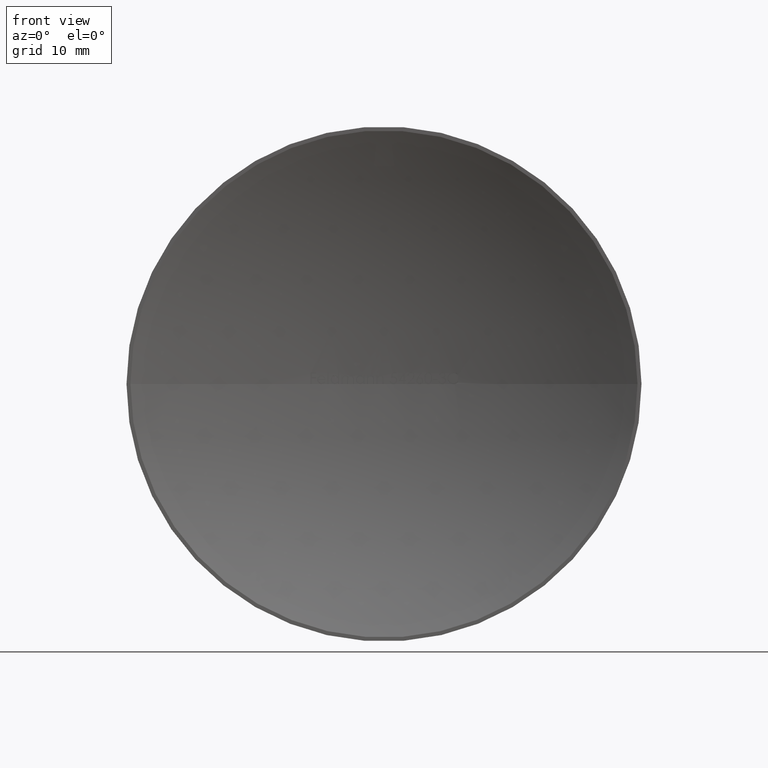
[diagram: clean part render]
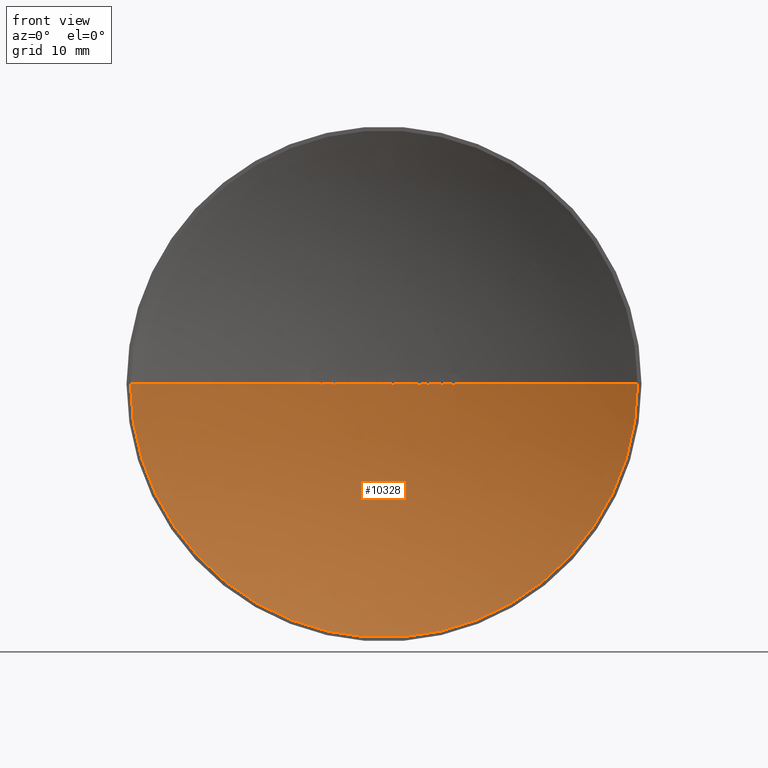
[diagram: same view with one face highlighted and labeled with its STEP entity id]
A machine part, front view. The second image highlights one B-rep face of the part: STEP entity #10328.
In plain terms, the highlighted spherical surface has radius 66.4302 mm.
Its self-contained STEP definition (entity closure, byte-faithful):
#23 = CARTESIAN_POINT ( 'NONE',  ( -8.522636217948688800, 6.451027374792510600, 5.077782315761250600E-015 ) ) ;
#24 = CARTESIAN_POINT ( 'NONE',  ( 5.004972786114223900, 6.811189649376662400, 8.658394159128149800E-006 ) ) ;
#31 = CARTESIAN_POINT ( 'NONE',  ( 4.342966016880645000, 6.857884164009932200, 1.736758565127376200E-006 ) ) ;
#39 = ORIENTED_EDGE ( 'NONE', *, *, #9159, .T. ) ;
#53 = CIRCLE ( 'NONE', #3387, 66.43017857142852700 ) ;
#54 = CARTESIAN_POINT ( 'NONE',  ( 5.327266439433031100, 6.786049295040212000, 1.983274232265610600E-005 ) ) ;
#61 = CIRCLE ( 'NONE', #3767, 29.68202317902207500 ) ;
#88 = B_SPLINE_CURVE_WITH_KNOTS ( 'NONE', 3,
 ( #533, #6390, #4370, #12469, #9437, #12284, #2488, #487 ),
 .UNSPECIFIED., .F., .F.,
 ( 4, 2, 2, 4 ),
 ( 0.6915284599364781600, 0.8457642299682390800, 0.9228821149841195400, 1.000000000000000000 ),
 .UNSPECIFIED. ) ;
#113 = EDGE_CURVE ( 'NONE', #2863, #12756, #8528, .T. ) ;
#170 = CARTESIAN_POINT ( 'NONE',  ( 8.159865523305255100, 6.496938691238555400, -0.03360497176250056000 ) ) ;
#208 = CARTESIAN_POINT ( 'NONE',  ( 6.917659629173074100, 6.638839374358304300, -0.02083154504919444700 ) ) ;
#233 = CARTESIAN_POINT ( 'NONE',  ( 1.851550126366366400E-014, -59.43017857142852700, 0.0000000000000000000 ) ) ;
#249 = ORIENTED_EDGE ( 'NONE', *, *, #3310, .T. ) ;
#294 = AXIS2_PLACEMENT_3D ( 'NONE', #8605, #3777, #1761 ) ;
#297 = CARTESIAN_POINT ( 'NONE',  ( 1.014727432201454800, 6.992244220328792000, -0.03003811572587966300 ) ) ;
#299 = EDGE_CURVE ( 'NONE', #4088, #7540, #5116, .T. ) ;
#306 = VERTEX_POINT ( 'NONE', #10859 ) ;
#313 = VERTEX_POINT ( 'NONE', #7762 ) ;
#351 = CIRCLE ( 'NONE', #1428, 66.43017857142852700 ) ;
#404 = ORIENTED_EDGE ( 'NONE', *, *, #2468, .T. ) ;
#407 = B_SPLINE_CURVE_WITH_KNOTS ( 'NONE', 3,
 ( #31, #1781, #12747, #6719, #2803, #8708, #6799, #7712, #11725, #5848 ),
 .UNSPECIFIED., .F., .F.,
 ( 4, 2, 2, 2, 4 ),
 ( 0.7312491607469426800, 0.8656245803734692300, 0.9328122901867346200, 0.9664061450933673100, 1.000000000000000000 ),
 .UNSPECIFIED. ) ;
#453 = EDGE_CURVE ( 'NONE', #2863, #858, #9598, .T. ) ;
#483 = CARTESIAN_POINT ( 'NONE',  ( -5.896485805512929400, 6.737790022120274000, -3.164025963541740200E-006 ) ) ;
#487 = CARTESIAN_POINT ( 'NONE',  ( -2.794767461271348500, 6.941182814426407600, -0.01696047008546997000 ) ) ;
#501 = VERTEX_POINT ( 'NONE', #8140 ) ;
#533 = CARTESIAN_POINT ( 'NONE',  ( -2.656415807145405600, 6.946866175003003200, 9.668506685378765000E-007 ) ) ;
#540 = CARTESIAN_POINT ( 'NONE',  ( -3.536258012820490600, 6.905810938781116600, 5.415877148130041200E-015 ) ) ;
#594 = AXIS2_PLACEMENT_3D ( 'NONE', #9836, #9880, #10815 ) ;
#609 = AXIS2_PLACEMENT_3D ( 'NONE', #10105, #7965, #2061 ) ;
#628 = CARTESIAN_POINT ( 'NONE',  ( 1.073544754941255800, 6.991316263156742000, -0.03392094017094018900 ) ) ;
#656 = CIRCLE ( 'NONE', #12786, 66.43017857142852700 ) ;
#721 = EDGE_CURVE ( 'NONE', #11035, #10247, #12006, .T. ) ;
#745 = VERTEX_POINT ( 'NONE', #1008 ) ;
#782 = DIRECTION ( 'NONE',  ( 1.000000000000000000, 0.0000000000000000000, 0.0000000000000000000 ) ) ;
#805 = CARTESIAN_POINT ( 'NONE',  ( 1.851550126366366400E-014, -59.43017857142852700, 0.0000000000000000000 ) ) ;
#814 = CIRCLE ( 'NONE', #3224, 66.43017857142852700 ) ;
#842 = DIRECTION ( 'NONE',  ( 0.0000000000000000000, 0.0000000000000000000, -1.000000000000000000 ) ) ;
#843 = DIRECTION ( 'NONE',  ( -9.257750631831822700E-015, -1.000000000000000000, -0.0000000000000000000 ) ) ;
#858 = VERTEX_POINT ( 'NONE', #3408 ) ;
#862 = CIRCLE ( 'NONE', #4937, 66.43017857142852700 ) ;
#864 = CARTESIAN_POINT ( 'NONE',  ( 5.165788177751086800, 6.798834005419603700, -0.03392094017094023100 ) ) ;
#869 = CARTESIAN_POINT ( 'NONE',  ( -7.340968466212589600, 6.593139425718569600, -0.01696047008547008800 ) ) ;
#891 = CARTESIAN_POINT ( 'NONE',  ( -5.762849726228614200, 6.749560778369768400, -0.01696047008546929700 ) ) ;
#903 = AXIS2_PLACEMENT_3D ( 'NONE', #3594, #1498, #6464 ) ;
#908 = CARTESIAN_POINT ( 'NONE',  ( 5.276747908055542200, 6.790113832693068100, -0.02262029412128738900 ) ) ;
#931 = DIRECTION ( 'NONE',  ( 1.000000000000000000, -9.257750631831822700E-015, 0.0000000000000000000 ) ) ;
#935 = CARTESIAN_POINT ( 'NONE',  ( -5.647231844788295000, 6.759532988880932800, -0.005855859227228045100 ) ) ;
#965 = CIRCLE ( 'NONE', #7787, 66.43017857142852700 ) ;
#974 = CIRCLE ( 'NONE', #594, 66.43017857142852700 ) ;
#1000 = DIRECTION ( 'NONE',  ( 1.000000000000000000, 0.0000000000000000000, 0.0000000000000000000 ) ) ;
#1008 = CARTESIAN_POINT ( 'NONE',  ( 4.342966016880645000, 6.857884164009932200, 1.736758565127376200E-006 ) ) ;
#1021 = AXIS2_PLACEMENT_3D ( 'NONE', #12545, #10576, #6470 ) ;
#1075 = CARTESIAN_POINT ( 'NONE',  ( 6.860715946046376200, 6.644767912974522500, -0.02985472088839011300 ) ) ;
#1076 = CARTESIAN_POINT ( 'NONE',  ( 8.290370445413586300, 6.480666814148150900, -0.02041759173794994700 ) ) ;
#1169 = DIRECTION ( 'NONE',  ( -1.000000000000000000, 0.0000000000000000000, 1.224646799147353200E-016 ) ) ;
#1184 = EDGE_CURVE ( 'NONE', #7489, #4104, #974, .T. ) ;
#1215 = CARTESIAN_POINT ( 'NONE',  ( 6.724516828887944400, 6.658773214277601000, -0.02988981742920416100 ) ) ;
#1277 = B_SPLINE_CURVE_WITH_KNOTS ( 'NONE', 3,
 ( #6989, #4974, #1076, #3083, #9972, #4051, #170, #5015 ),
 .UNSPECIFIED., .F., .F.,
 ( 4, 2, 2, 4 ),
 ( 0.6451300335759891900, 0.8225650167879980900, 0.9112825083939990500, 1.000000000000000000 ),
 .UNSPECIFIED. ) ;
#1278 = EDGE_CURVE ( 'NONE', #8877, #8895, #3114, .T. ) ;
#1283 = CARTESIAN_POINT ( 'NONE',  ( 0.9062174173752549600, 6.993818484255828400, 9.643277976112545500E-006 ) ) ;
#1306 = DIRECTION ( 'NONE',  ( 1.000000000000000000, 0.0000000000000000000, 0.0000000000000000000 ) ) ;
#1313 = CARTESIAN_POINT ( 'NONE',  ( 1.851550126366366400E-014, -59.43017857142852700, 0.0000000000000000000 ) ) ;
#1314 = CARTESIAN_POINT ( 'NONE',  ( -5.367988782051262400, 6.782760658510911300, 3.286945139899370700E-016 ) ) ;
#1319 = ORIENTED_EDGE ( 'NONE', *, *, #3792, .T. ) ;
#1331 = EDGE_CURVE ( 'NONE', #7455, #8592, #10349, .T. ) ;
#1357 = DIRECTION ( 'NONE',  ( -1.224646799147353200E-016, 1.133747467857722800E-030, -1.000000000000000000 ) ) ;
#1359 = ORIENTED_EDGE ( 'NONE', *, *, #7171, .F. ) ;
#1428 = AXIS2_PLACEMENT_3D ( 'NONE', #805, #3668, #12664 ) ;
#1498 = DIRECTION ( 'NONE',  ( 0.0000000000000000000, -0.0000000000000000000, 1.000000000000000000 ) ) ;
#1562 = CARTESIAN_POINT ( 'NONE',  ( 4.009491489483225200, 6.878890164770546700, 1.012043942697234100E-006 ) ) ;
#1582 = CIRCLE ( 'NONE', #6769, 66.43017857142852700 ) ;
#1638 = CARTESIAN_POINT ( 'NONE',  ( 1.851550126366366400E-014, -59.43017857142852700, 0.0000000000000000000 ) ) ;
#1673 = AXIS2_PLACEMENT_3D ( 'NONE', #10648, #11554, #4669 ) ;
#1703 = VERTEX_POINT ( 'NONE', #23 ) ;
#1731 = AXIS2_PLACEMENT_3D ( 'NONE', #233, #9050, #1306 ) ;
#1734 = CARTESIAN_POINT ( 'NONE',  ( -4.197716346153825400, 6.867240703450595300, 5.412728153780717100E-015 ) ) ;
#1761 = DIRECTION ( 'NONE',  ( 1.000000000000000000, 0.0000000000000000000, 0.0000000000000000000 ) ) ;
#1781 = CARTESIAN_POINT ( 'NONE',  ( 4.316351520074240600, 6.859627930012282000, -0.01128910878301984600 ) ) ;
#1801 = ORIENTED_EDGE ( 'NONE', *, *, #7716, .T. ) ;
#1822 = EDGE_CURVE ( 'NONE', #7048, #10422, #2837, .T. ) ;
#1828 = CARTESIAN_POINT ( 'NONE',  ( 7.890717786329146200, 6.529696670580331200, 8.722626568949768700E-006 ) ) ;
#1899 = CARTESIAN_POINT ( 'NONE',  ( -7.198437231001801000, 6.608833454196194200, 1.557357203263013400E-007 ) ) ;
#1909 = VERTEX_POINT ( 'NONE', #8650 ) ;
#1927 = CARTESIAN_POINT ( 'NONE',  ( 1.851550126366366400E-014, -59.43017857142852700, 0.0000000000000000000 ) ) ;
#1931 = CARTESIAN_POINT ( 'NONE',  ( -2.928401803393922500, 6.935423029465665600, -4.716759717897009400E-006 ) ) ;
#1941 = ORIENTED_EDGE ( 'NONE', *, *, #3151, .T. ) ;
#1957 = VERTEX_POINT ( 'NONE', #6917 ) ;
#1990 = CARTESIAN_POINT ( 'NONE',  ( -5.713042373222310600, 6.753880431565932000, -0.01493598827987714000 ) ) ;
#1998 = EDGE_CURVE ( 'NONE', #4532, #1909, #1277, .T. ) ;
#2020 = CARTESIAN_POINT ( 'NONE',  ( -7.280925053312247800, 6.599789576879617300, -0.01445548997176768600 ) ) ;
#2061 = DIRECTION ( 'NONE',  ( 1.000000000000000000, 0.0000000000000000000, 0.0000000000000000000 ) ) ;
#2089 = DIRECTION ( 'NONE',  ( -1.000000000000000000, 0.0000000000000000000, 1.224646799147353200E-016 ) ) ;
#2102 = DIRECTION ( 'NONE',  ( -1.224646799147353200E-016, 1.133747467857722800E-030, -1.000000000000000000 ) ) ;
#2112 = VERTEX_POINT ( 'NONE', #6552 ) ;
#2125 = ORIENTED_EDGE ( 'NONE', *, *, #10486, .T. ) ;
#2133 = VERTEX_POINT ( 'NONE', #7462 ) ;
#2141 = CARTESIAN_POINT ( 'NONE',  ( 6.638189096576419400, 6.667505986008105600, -0.01190084169506753900 ) ) ;
#2198 = DIRECTION ( 'NONE',  ( 0.0000000000000000000, 0.0000000000000000000, 1.000000000000000000 ) ) ;
#2286 = ORIENTED_EDGE ( 'NONE', *, *, #5641, .F. ) ;
#2357 = AXIS2_PLACEMENT_3D ( 'NONE', #3444, #842, #5809 ) ;
#2407 = EDGE_CURVE ( 'NONE', #10247, #12107, #3231, .T. ) ;
#2465 = CARTESIAN_POINT ( 'NONE',  ( -0.1611244658119550800, 6.999804598360082500, 0.0000000000000000000 ) ) ;
#2468 = EDGE_CURVE ( 'NONE', #1957, #858, #7747, .T. ) ;
#2488 = CARTESIAN_POINT ( 'NONE',  ( -2.779498765197791200, 6.941825839627401100, -0.01660652747433853300 ) ) ;
#2510 = EDGE_CURVE ( 'NONE', #313, #7577, #10827, .T. ) ;
#2543 = AXIS2_PLACEMENT_3D ( 'NONE', #10624, #4731, #1000 ) ;
#2555 = VERTEX_POINT ( 'NONE', #7172 ) ;
#2572 = EDGE_LOOP ( 'NONE', ( #2286, #8483, #9766, #10386, #4743, #8406, #10060, #9764, #7059, #39, #1941, #10292, #5432, #6237, #8572, #4384, #8016, #11660, #8385, #2125, #2783, #5220, #5844, #6686, #12515, #11804, #9788, #3531, #7169, #11516, #12452, #1319, #12172, #6913, #1359, #5329, #1801, #6856, #249, #4111, #5160, #3667, #11360, #3618, #9651, #9034, #10085, #5053, #5182, #404, #2691, #5298, #6097 ) ) ;
#2659 = DIRECTION ( 'NONE',  ( 1.000000000000000000, 0.0000000000000000000, 0.0000000000000000000 ) ) ;
#2667 = CARTESIAN_POINT ( 'NONE',  ( -5.624533119961610900, 6.761461696624700800, -3.257222052881221600E-006 ) ) ;
#2671 = CARTESIAN_POINT ( 'NONE',  ( 3.587139423076938000, 6.903078967993493200, 5.415654101511347500E-015 ) ) ;
#2691 = ORIENTED_EDGE ( 'NONE', *, *, #453, .F. ) ;
#2708 = DIRECTION ( 'NONE',  ( 0.0000000000000000000, 0.0000000000000000000, 1.000000000000000000 ) ) ;
#2783 = ORIENTED_EDGE ( 'NONE', *, *, #3487, .T. ) ;
#2803 = CARTESIAN_POINT ( 'NONE',  ( 4.233092866632425500, 6.864986177424479600, -0.03023910183869557900 ) ) ;
#2820 = CARTESIAN_POINT ( 'NONE',  ( -4.859174679487156600, 6.822044383473987700, 5.409038185207876200E-015 ) ) ;
#2837 = B_SPLINE_CURVE_WITH_KNOTS ( 'NONE', 3,
 ( #6384, #10405, #5450, #483 ),
 .UNSPECIFIED., .F., .F.,
 ( 4, 4 ),
 ( 0.0000000000000000000, 0.1696774651416101700 ),
 .UNSPECIFIED. ) ;
#2858 = DIRECTION ( 'NONE',  ( 0.0000000000000000000, -0.0000000000000000000, 1.000000000000000000 ) ) ;
#2863 = VERTEX_POINT ( 'NONE', #3850 ) ;
#2868 = CARTESIAN_POINT ( 'NONE',  ( 6.792933276575865900, 6.651767010566011600, -0.03392094017093956500 ) ) ;
#2870 = CARTESIAN_POINT ( 'NONE',  ( -2.794767461271348500, 6.941182814426407600, -0.01696047008546997000 ) ) ;
#2905 = EDGE_CURVE ( 'NONE', #12274, #313, #4178, .T. ) ;
#2941 = CARTESIAN_POINT ( 'NONE',  ( 1.851550126366366400E-014, -59.43017857142852700, 0.0000000000000000000 ) ) ;
#2980 = EDGE_CURVE ( 'NONE', #10574, #9583, #53, .T. ) ;
#2993 = CARTESIAN_POINT ( 'NONE',  ( 6.949378024668041200, 6.635513459027018600, -0.01181292390482659200 ) ) ;
#3038 = CARTESIAN_POINT ( 'NONE',  ( 6.812392688487706000, 6.649766974922758100, -0.03332425331627562900 ) ) ;
#3083 = CARTESIAN_POINT ( 'NONE',  ( 8.231919395020536700, 6.487980477415068700, -0.02879356809867841100 ) ) ;
#3104 = CIRCLE ( 'NONE', #10735, 66.43017857142852700 ) ;
#3107 = AXIS2_PLACEMENT_3D ( 'NONE', #6802, #10768, #6759 ) ;
#3114 = CIRCLE ( 'NONE', #5019, 66.43017857142852700 ) ;
#3128 = CIRCLE ( 'NONE', #5081, 66.43017857142852700 ) ;
#3151 = EDGE_CURVE ( 'NONE', #8787, #6902, #5256, .T. ) ;
#3167 = CARTESIAN_POINT ( 'NONE',  ( 1.851550126366366400E-014, -59.43017857142852700, 0.0000000000000000000 ) ) ;
#3180 = CARTESIAN_POINT ( 'NONE',  ( -3.654981303418780600, 6.899375450165345000, 2.238030577088003900E-016 ) ) ;
#3189 = EDGE_CURVE ( 'NONE', #9183, #8705, #9745, .T. ) ;
#3224 = AXIS2_PLACEMENT_3D ( 'NONE', #5196, #10230, #7175 ) ;
#3231 = B_SPLINE_CURVE_WITH_KNOTS ( 'NONE', 3,
 ( #869, #3822, #12730, #6832 ),
 .UNSPECIFIED., .F., .F.,
 ( 4, 4 ),
 ( 0.0000000000000000000, 0.1807836670652108500 ),
 .UNSPECIFIED. ) ;
#3245 = DIRECTION ( 'NONE',  ( 0.0000000000000000000, 0.0000000000000000000, 1.000000000000000000 ) ) ;
#3270 = AXIS2_PLACEMENT_3D ( 'NONE', #4418, #11216, #3430 ) ;
#3271 = DIRECTION ( 'NONE',  ( 0.0000000000000000000, -0.0000000000000000000, 1.000000000000000000 ) ) ;
#3281 = VERTEX_POINT ( 'NONE', #8729 ) ;
#3305 = CARTESIAN_POINT ( 'NONE',  ( -29.68202317902150300, 5.558964229992239200E-013, 0.0000000000000000000 ) ) ;
#3310 = EDGE_CURVE ( 'NONE', #7489, #4412, #10659, .T. ) ;
#3387 = AXIS2_PLACEMENT_3D ( 'NONE', #1638, #6426, #9978 ) ;
#3391 = CIRCLE ( 'NONE', #4221, 66.43017857142852700 ) ;
#3396 = DIRECTION ( 'NONE',  ( -1.000000000000000000, 0.0000000000000000000, 1.224646799147353200E-016 ) ) ;
#3402 = DIRECTION ( 'NONE',  ( 1.000000000000000000, 0.0000000000000000000, 0.0000000000000000000 ) ) ;
#3408 = CARTESIAN_POINT ( 'NONE',  ( 2.298143696581220300, 6.960236102541883500, 0.0000000000000000000 ) ) ;
#3430 = DIRECTION ( 'NONE',  ( 1.000000000000000000, 0.0000000000000000000, 0.0000000000000000000 ) ) ;
#3444 = CARTESIAN_POINT ( 'NONE',  ( 1.851550126366366400E-014, -59.43017857142852700, 0.0000000000000000000 ) ) ;
#3453 = CARTESIAN_POINT ( 'NONE',  ( 1.200286661234907200, 6.989159872130147600, -0.02052153996602586900 ) ) ;
#3464 = EDGE_CURVE ( 'NONE', #6902, #5131, #351, .T. ) ;
#3487 = EDGE_CURVE ( 'NONE', #7354, #4088, #11430, .T. ) ;
#3531 = ORIENTED_EDGE ( 'NONE', *, *, #9876, .T. ) ;
#3560 = EDGE_CURVE ( 'NONE', #1957, #9583, #1582, .T. ) ;
#3563 = EDGE_CURVE ( 'NONE', #5532, #7048, #6290, .T. ) ;
#3594 = CARTESIAN_POINT ( 'NONE',  ( 1.851550126366366400E-014, -59.43017857142852700, 0.0000000000000000000 ) ) ;
#3618 = ORIENTED_EDGE ( 'NONE', *, *, #10183, .F. ) ;
#3626 = AXIS2_PLACEMENT_3D ( 'NONE', #1927, #11834, #9892 ) ;
#3667 = ORIENTED_EDGE ( 'NONE', *, *, #5539, .T. ) ;
#3668 = DIRECTION ( 'NONE',  ( 0.0000000000000000000, -0.0000000000000000000, 1.000000000000000000 ) ) ;
#3764 = VERTEX_POINT ( 'NONE', #1562 ) ;
#3767 = AXIS2_PLACEMENT_3D ( 'NONE', #7801, #843, #931 ) ;
#3777 = DIRECTION ( 'NONE',  ( 0.0000000000000000000, 0.0000000000000000000, 1.000000000000000000 ) ) ;
#3792 = EDGE_CURVE ( 'NONE', #1703, #8634, #3104, .T. ) ;
#3801 = DIRECTION ( 'NONE',  ( -1.000000000000000000, 0.0000000000000000000, 1.224646799147353200E-016 ) ) ;
#3808 = CARTESIAN_POINT ( 'NONE',  ( 4.009491489483225200, 6.878890164770546700, 1.012043942697234100E-006 ) ) ;
#3822 = CARTESIAN_POINT ( 'NONE',  ( -7.393038173780295700, 6.587350236730618000, -0.01574494939064656500 ) ) ;
#3850 = CARTESIAN_POINT ( 'NONE',  ( 1.261121777289197400, 6.988028193234717000, -9.167402485458805900E-007 ) ) ;
#3916 = EDGE_CURVE ( 'NONE', #12756, #6008, #9943, .T. ) ;
#3919 = CARTESIAN_POINT ( 'NONE',  ( -5.747602909655213000, 6.750888542848904300, -0.01660703466155204900 ) ) ;
#4051 = CARTESIAN_POINT ( 'NONE',  ( 8.173036359591229400, 6.495304980684376300, -0.03335402029129003200 ) ) ;
#4074 = DIRECTION ( 'NONE',  ( 1.000000000000000000, 0.0000000000000000000, 0.0000000000000000000 ) ) ;
#4088 = VERTEX_POINT ( 'NONE', #5804 ) ;
#4091 = VERTEX_POINT ( 'NONE', #9866 ) ;
#4104 = VERTEX_POINT ( 'NONE', #10720 ) ;
#4111 = ORIENTED_EDGE ( 'NONE', *, *, #4155, .T. ) ;
#4153 = CARTESIAN_POINT ( 'NONE',  ( 2.688234508547026700, 6.945585230270498100, 1.455741836240979700E-015 ) ) ;
#4155 = EDGE_CURVE ( 'NONE', #4412, #12620, #7653, .T. ) ;
#4157 = CARTESIAN_POINT ( 'NONE',  ( 6.609460690423429900, 6.670378558222040500, -1.129570290554181700E-005 ) ) ;
#4178 = CIRCLE ( 'NONE', #10236, 66.43017857142852700 ) ;
#4190 = CARTESIAN_POINT ( 'NONE',  ( 1.851550126366366400E-014, -59.43017857142852700, 0.0000000000000000000 ) ) ;
#4191 = EDGE_CURVE ( 'NONE', #9401, #4091, #8030, .T. ) ;
#4199 = VERTEX_POINT ( 'NONE', #24 ) ;
#4221 = AXIS2_PLACEMENT_3D ( 'NONE', #7752, #8748, #4074 ) ;
#4229 = EDGE_CURVE ( 'NONE', #12107, #1703, #814, .T. ) ;
#4273 = AXIS2_PLACEMENT_3D ( 'NONE', #7650, #2708, #8685 ) ;
#4309 = B_SPLINE_CURVE_WITH_KNOTS ( 'NONE', 3,
 ( #4674, #12538, #7684, #8678, #6600, #3808 ),
 .UNSPECIFIED., .F., .F.,
 ( 4, 2, 4 ),
 ( 0.0000000000000000000, 0.1336037352279619000, 0.2672074704559238000 ),
 .UNSPECIFIED. ) ;
#4313 = DIRECTION ( 'NONE',  ( -1.000000000000000000, 0.0000000000000000000, 1.224646799147353200E-016 ) ) ;
#4316 = AXIS2_PLACEMENT_3D ( 'NONE', #4190, #6998, #10950 ) ;
#4370 = CARTESIAN_POINT ( 'NONE',  ( -2.701705802547022200, 6.945041638655964400, -0.01008971788314707600 ) ) ;
#4384 = ORIENTED_EDGE ( 'NONE', *, *, #5161, .T. ) ;
#4412 = VERTEX_POINT ( 'NONE', #2868 ) ;
#4418 = CARTESIAN_POINT ( 'NONE',  ( 1.851550126366366400E-014, -59.43017857142852700, 0.0000000000000000000 ) ) ;
#4495 = CARTESIAN_POINT ( 'NONE',  ( 1.261121777289197400, 6.988028193234717000, -9.167402485458805900E-007 ) ) ;
#4521 = CARTESIAN_POINT ( 'NONE',  ( 1.851550126366366400E-014, -59.43017857142852700, 0.0000000000000000000 ) ) ;
#4529 = CARTESIAN_POINT ( 'NONE',  ( 1.851550126366366400E-014, -59.43017857142852700, 0.0000000000000000000 ) ) ;
#4532 = VERTEX_POINT ( 'NONE', #6073 ) ;
#4603 = CARTESIAN_POINT ( 'NONE',  ( -6.504340277777756400, 6.680805255638802900, 4.446406211702347100E-015 ) ) ;
#4608 = DIRECTION ( 'NONE',  ( 1.000000000000000000, 0.0000000000000000000, 0.0000000000000000000 ) ) ;
#4669 = DIRECTION ( 'NONE',  ( 1.000000000000000000, 0.0000000000000000000, 0.0000000000000000000 ) ) ;
#4674 = CARTESIAN_POINT ( 'NONE',  ( 4.174395699786343200, 6.868704488117075800, -0.03392094017094001600 ) ) ;
#4731 = DIRECTION ( 'NONE',  ( 0.0000000000000000000, 0.0000000000000000000, 1.000000000000000000 ) ) ;
#4743 = ORIENTED_EDGE ( 'NONE', *, *, #11429, .T. ) ;
#4748 = CARTESIAN_POINT ( 'NONE',  ( -5.762849726228614200, 6.749560778369768400, -0.01696047008546929700 ) ) ;
#4775 = CARTESIAN_POINT ( 'NONE',  ( -4.316439636752110500, 6.859616826461759400, 0.0000000000000000000 ) ) ;
#4812 = CARTESIAN_POINT ( 'NONE',  ( -7.480759993015309000, 6.577448420023644700, -2.146346530891694600E-006 ) ) ;
#4864 = CARTESIAN_POINT ( 'NONE',  ( -7.221278458772248500, 6.606343826215503000, -0.005956507221806031600 ) ) ;
#4878 = CARTESIAN_POINT ( 'NONE',  ( 8.133605435363259400, 6.500178147032576300, -0.03392094017094016100 ) ) ;
#4901 = CARTESIAN_POINT ( 'NONE',  ( -2.887934006024022600, 6.937208773146024600, -0.01015619754561262700 ) ) ;
#4937 = AXIS2_PLACEMENT_3D ( 'NONE', #3167, #12133, #4313 ) ;
#4957 = CARTESIAN_POINT ( 'NONE',  ( -5.704695880799300200, 6.754600675183249700, -0.01425468610349842100 ) ) ;
#4974 = CARTESIAN_POINT ( 'NONE',  ( 8.329080331833285600, 6.475788240046374400, -0.01172972223754921600 ) ) ;
#5010 = VERTEX_POINT ( 'NONE', #1734 ) ;
#5015 = CARTESIAN_POINT ( 'NONE',  ( 8.133605435363259400, 6.500178147032576300, -0.03392094017094016100 ) ) ;
#5019 = AXIS2_PLACEMENT_3D ( 'NONE', #7142, #3271, #11094 ) ;
#5053 = ORIENTED_EDGE ( 'NONE', *, *, #2980, .T. ) ;
#5081 = AXIS2_PLACEMENT_3D ( 'NONE', #10826, #2858, #9754 ) ;
#5091 = DIRECTION ( 'NONE',  ( 1.000000000000000000, 0.0000000000000000000, 0.0000000000000000000 ) ) ;
#5116 = CIRCLE ( 'NONE', #11952, 66.43017857142852700 ) ;
#5131 = VERTEX_POINT ( 'NONE', #12656 ) ;
#5160 = ORIENTED_EDGE ( 'NONE', *, *, #12275, .F. ) ;
#5161 = EDGE_CURVE ( 'NONE', #12795, #7330, #3391, .T. ) ;
#5182 = ORIENTED_EDGE ( 'NONE', *, *, #3560, .F. ) ;
#5196 = CARTESIAN_POINT ( 'NONE',  ( 1.851550126366366400E-014, -59.43017857142852700, 0.0000000000000000000 ) ) ;
#5220 = ORIENTED_EDGE ( 'NONE', *, *, #299, .T. ) ;
#5230 = CARTESIAN_POINT ( 'NONE',  ( 1.851550126366366400E-014, -59.43017857142852700, 0.0000000000000000000 ) ) ;
#5256 = CIRCLE ( 'NONE', #1021, 66.43017857142852700 ) ;
#5258 = AXIS2_PLACEMENT_3D ( 'NONE', #7273, #1357, #3396 ) ;
#5297 = DIRECTION ( 'NONE',  ( -1.000000000000000000, 0.0000000000000000000, 1.224646799147353200E-016 ) ) ;
#5298 = ORIENTED_EDGE ( 'NONE', *, *, #113, .T. ) ;
#5329 = ORIENTED_EDGE ( 'NONE', *, *, #1998, .T. ) ;
#5389 = CARTESIAN_POINT ( 'NONE',  ( -1.891092414529897300, 6.973077331513370500, 5.421368986300025600E-015 ) ) ;
#5432 = ORIENTED_EDGE ( 'NONE', *, *, #6156, .T. ) ;
#5450 = CARTESIAN_POINT ( 'NONE',  ( -5.856396288490440600, 6.741362648444865400, -0.01006089725309572900 ) ) ;
#5466 = EDGE_CURVE ( 'NONE', #8705, #8877, #6632, .T. ) ;
#5484 = CARTESIAN_POINT ( 'NONE',  ( 1.073544754941255800, 6.991316263156742000, -0.03392094017094018900 ) ) ;
#5515 = CARTESIAN_POINT ( 'NONE',  ( -2.399906517093996200, 6.956635433621388000, 1.469518917206404600E-016 ) ) ;
#5532 = VERTEX_POINT ( 'NONE', #2667 ) ;
#5539 = EDGE_CURVE ( 'NONE', #2112, #12100, #6697, .T. ) ;
#5581 = DIRECTION ( 'NONE',  ( 0.0000000000000000000, -0.0000000000000000000, 1.000000000000000000 ) ) ;
#5596 = DIRECTION ( 'NONE',  ( 0.0000000000000000000, 0.0000000000000000000, 1.000000000000000000 ) ) ;
#5641 = EDGE_CURVE ( 'NONE', #9183, #6008, #965, .T. ) ;
#5693 = EDGE_CURVE ( 'NONE', #7540, #5532, #656, .T. ) ;
#5736 = CIRCLE ( 'NONE', #7654, 66.43017857142852700 ) ;
#5766 = CIRCLE ( 'NONE', #10874, 66.43017857142852700 ) ;
#5779 = EDGE_CURVE ( 'NONE', #745, #7228, #407, .T. ) ;
#5781 = CIRCLE ( 'NONE', #8734, 66.43017857142852700 ) ;
#5804 = CARTESIAN_POINT ( 'NONE',  ( -5.249265491452973700, 6.792278622729727800, 5.406608015633234500E-015 ) ) ;
#5809 = DIRECTION ( 'NONE',  ( -1.000000000000000000, 9.296400683067788600E-015, 0.0000000000000000000 ) ) ;
#5811 = CARTESIAN_POINT ( 'NONE',  ( 7.929328570232313700, 6.525078124194423300, -0.01174480710170744900 ) ) ;
#5844 = ORIENTED_EDGE ( 'NONE', *, *, #5693, .T. ) ;
#5848 = CARTESIAN_POINT ( 'NONE',  ( 4.174395699786343200, 6.868704488117075800, -0.03392094017094001600 ) ) ;
#5883 = CARTESIAN_POINT ( 'NONE',  ( -7.244969988023691500, 6.603748436405247400, -0.01037978764705182000 ) ) ;
#5886 = CARTESIAN_POINT ( 'NONE',  ( 4.174395699786343200, 6.868704488117075800, -0.03392094017094001600 ) ) ;
#5924 = DIRECTION ( 'NONE',  ( 0.0000000000000000000, -0.0000000000000000000, 1.000000000000000000 ) ) ;
#5967 = CARTESIAN_POINT ( 'NONE',  ( -7.325185528078318200, 6.594894375275212700, -0.01663373980258998900 ) ) ;
#6008 = VERTEX_POINT ( 'NONE', #12108 ) ;
#6073 = CARTESIAN_POINT ( 'NONE',  ( 8.366405179285944600, 6.471049637275773300, -4.314708808277502500E-006 ) ) ;
#6081 = VERTEX_POINT ( 'NONE', #3305 ) ;
#6086 = CARTESIAN_POINT ( 'NONE',  ( 1.851550126366366400E-014, -59.43017857142852700, 0.0000000000000000000 ) ) ;
#6097 = ORIENTED_EDGE ( 'NONE', *, *, #3916, .T. ) ;
#6156 = EDGE_CURVE ( 'NONE', #5131, #2133, #88, .T. ) ;
#6162 = CARTESIAN_POINT ( 'NONE',  ( 1.057705301812287700, 6.991572430759043200, -0.03360628954061942200 ) ) ;
#6201 = CARTESIAN_POINT ( 'NONE',  ( 1.042775511435023000, 6.991808533392374500, -0.03273922385146402200 ) ) ;
#6203 = DIRECTION ( 'NONE',  ( 1.000000000000000000, 0.0000000000000000000, 0.0000000000000000000 ) ) ;
#6237 = ORIENTED_EDGE ( 'NONE', *, *, #12157, .T. ) ;
#6286 = CARTESIAN_POINT ( 'NONE',  ( 1.073544754941255800, 6.991316263156742000, -0.03392094017094018900 ) ) ;
#6290 = B_SPLINE_CURVE_WITH_KNOTS ( 'NONE', 3,
 ( #9706, #935, #8758, #4957, #1990, #10688, #3919, #891 ),
 .UNSPECIFIED., .F., .F.,
 ( 4, 2, 2, 4 ),
 ( 0.6914062857405260900, 0.8457031428702602700, 0.9228515714351300800, 1.000000000000000000 ),
 .UNSPECIFIED. ) ;
#6372 = CARTESIAN_POINT ( 'NONE',  ( 1.107054925742622300, 6.990774806462602500, -0.03361714293131357800 ) ) ;
#6384 = CARTESIAN_POINT ( 'NONE',  ( -5.762849726228614200, 6.749560778369768400, -0.01696047008546929700 ) ) ;
#6390 = CARTESIAN_POINT ( 'NONE',  ( -2.678782724040822000, 6.945971130407137700, -0.005772618563248762100 ) ) ;
#6426 = DIRECTION ( 'NONE',  ( 0.0000000000000000000, 0.0000000000000000000, 1.000000000000000000 ) ) ;
#6464 = DIRECTION ( 'NONE',  ( 1.000000000000000000, 0.0000000000000000000, 0.0000000000000000000 ) ) ;
#6470 = DIRECTION ( 'NONE',  ( 1.000000000000000000, 0.0000000000000000000, 0.0000000000000000000 ) ) ;
#6494 = DIRECTION ( 'NONE',  ( 0.0000000000000000000, -0.0000000000000000000, 1.000000000000000000 ) ) ;
#6517 = CARTESIAN_POINT ( 'NONE',  ( 1.851550126366366400E-014, -59.43017857142852700, 0.0000000000000000000 ) ) ;
#6552 = CARTESIAN_POINT ( 'NONE',  ( 5.327266439433031100, 6.786049295040212000, 1.983274232265610600E-005 ) ) ;
#6600 = CARTESIAN_POINT ( 'NONE',  ( 4.035495291860427400, 6.877317848465955000, -0.01142663813006736100 ) ) ;
#6613 = EDGE_CURVE ( 'NONE', #7228, #3764, #4309, .T. ) ;
#6632 = CIRCLE ( 'NONE', #294, 66.43017857142852700 ) ;
#6686 = ORIENTED_EDGE ( 'NONE', *, *, #3563, .T. ) ;
#6697 = B_SPLINE_CURVE_WITH_KNOTS ( 'NONE', 3,
 ( #54, #908, #11791, #864 ),
 .UNSPECIFIED., .F., .F.,
 ( 4, 4 ),
 ( 0.8208415813932712400, 1.000000000000000000 ),
 .UNSPECIFIED. ) ;
#6719 = CARTESIAN_POINT ( 'NONE',  ( 4.246404674252912200, 6.864135405057286500, -0.02840355781576526700 ) ) ;
#6759 = DIRECTION ( 'NONE',  ( 1.000000000000000000, 0.0000000000000000000, 0.0000000000000000000 ) ) ;
#6769 = AXIS2_PLACEMENT_3D ( 'NONE', #7846, #10814, #3801 ) ;
#6799 = CARTESIAN_POINT ( 'NONE',  ( 4.205729355642419300, 6.866725295839611200, -0.03246083080773501400 ) ) ;
#6802 = CARTESIAN_POINT ( 'NONE',  ( 1.851550126366366400E-014, -59.43017857142852700, 0.0000000000000000000 ) ) ;
#6832 = CARTESIAN_POINT ( 'NONE',  ( -7.480759993015309000, 6.577448420023644700, -2.146346530891694600E-006 ) ) ;
#6856 = ORIENTED_EDGE ( 'NONE', *, *, #1184, .F. ) ;
#6870 = EDGE_CURVE ( 'NONE', #12100, #4199, #12322, .T. ) ;
#6902 = VERTEX_POINT ( 'NONE', #5515 ) ;
#6913 = ORIENTED_EDGE ( 'NONE', *, *, #9160, .T. ) ;
#6917 = CARTESIAN_POINT ( 'NONE',  ( 2.416866987179507700, 6.956020137325404900, 5.869270040952140100E-015 ) ) ;
#6929 = CARTESIAN_POINT ( 'NONE',  ( -7.312362513193207300, 6.596314706356700700, -0.01623652899831633600 ) ) ;
#6965 = CIRCLE ( 'NONE', #11255, 66.43017857142852700 ) ;
#6967 = CARTESIAN_POINT ( 'NONE',  ( 6.757340958984846300, 6.655426171857772700, -0.03308786174055734800 ) ) ;
#6989 = CARTESIAN_POINT ( 'NONE',  ( 8.366405179285944600, 6.471049637275773300, -4.314708808277502500E-006 ) ) ;
#6998 = DIRECTION ( 'NONE',  ( 0.0000000000000000000, -0.0000000000000000000, 1.000000000000000000 ) ) ;
#7002 = DIRECTION ( 'NONE',  ( 1.000000000000000000, 0.0000000000000000000, 0.0000000000000000000 ) ) ;
#7048 = VERTEX_POINT ( 'NONE', #4748 ) ;
#7050 = CARTESIAN_POINT ( 'NONE',  ( 1.851550126366366400E-014, -59.43017857142852700, 0.0000000000000000000 ) ) ;
#7059 = ORIENTED_EDGE ( 'NONE', *, *, #12126, .T. ) ;
#7072 = CARTESIAN_POINT ( 'NONE',  ( 6.792933276575865900, 6.651767010566011600, -0.03392094017093956500 ) ) ;
#7089 = CARTESIAN_POINT ( 'NONE',  ( 6.792933276575865900, 6.651767010566011600, -0.03392094017093956500 ) ) ;
#7142 = CARTESIAN_POINT ( 'NONE',  ( 1.851550126366366400E-014, -59.43017857142852700, 0.0000000000000000000 ) ) ;
#7158 = CARTESIAN_POINT ( 'NONE',  ( 0.9580993617965373200, 6.993094258527605700, -0.01999947597146693700 ) ) ;
#7169 = ORIENTED_EDGE ( 'NONE', *, *, #721, .T. ) ;
#7171 = EDGE_CURVE ( 'NONE', #4532, #2555, #9083, .T. ) ;
#7172 = CARTESIAN_POINT ( 'NONE',  ( 29.68202317902200300, 3.551898003296370800E-015, -3.634999467840615000E-015 ) ) ;
#7175 = DIRECTION ( 'NONE',  ( 1.000000000000000000, 0.0000000000000000000, 0.0000000000000000000 ) ) ;
#7206 = DIRECTION ( 'NONE',  ( -1.224646799147353200E-016, 1.133747467857722800E-030, -1.000000000000000000 ) ) ;
#7228 = VERTEX_POINT ( 'NONE', #5886 ) ;
#7273 = CARTESIAN_POINT ( 'NONE',  ( 1.851550126366366400E-014, -59.43017857142852700, 0.0000000000000000000 ) ) ;
#7275 = CARTESIAN_POINT ( 'NONE',  ( 5.054993382413648800, 6.807410331504034900, -0.02277002313951248200 ) ) ;
#7284 = CARTESIAN_POINT ( 'NONE',  ( -1.161792200854683900, 6.989839976550768200, 5.422737540939378600E-015 ) ) ;
#7318 = DIRECTION ( 'NONE',  ( 1.000000000000000000, 0.0000000000000000000, 0.0000000000000000000 ) ) ;
#7330 = VERTEX_POINT ( 'NONE', #3180 ) ;
#7351 = CARTESIAN_POINT ( 'NONE',  ( -4.977897970085449800, 6.813229831455602800, 0.0000000000000000000 ) ) ;
#7354 = VERTEX_POINT ( 'NONE', #7351 ) ;
#7357 = CARTESIAN_POINT ( 'NONE',  ( 5.165788177751086800, 6.798834005419603700, -0.03392094017094023100 ) ) ;
#7368 = CIRCLE ( 'NONE', #4316, 66.43017857142852700 ) ;
#7431 = CIRCLE ( 'NONE', #3107, 66.43017857142852700 ) ;
#7455 = VERTEX_POINT ( 'NONE', #4775 ) ;
#7462 = CARTESIAN_POINT ( 'NONE',  ( -2.794767461271348500, 6.941182814426407600, -0.01696047008546997000 ) ) ;
#7489 = VERTEX_POINT ( 'NONE', #9139 ) ;
#7540 = VERTEX_POINT ( 'NONE', #1314 ) ;
#7571 = CARTESIAN_POINT ( 'NONE',  ( 5.165788177751086800, 6.798834005419603700, -0.03392094017094023100 ) ) ;
#7577 = VERTEX_POINT ( 'NONE', #5389 ) ;
#7650 = CARTESIAN_POINT ( 'NONE',  ( 1.851550126366366400E-014, -59.43017857142852700, 0.0000000000000000000 ) ) ;
#7653 = B_SPLINE_CURVE_WITH_KNOTS ( 'NONE', 3,
 ( #7089, #6967, #1215, #8955, #2141, #4157 ),
 .UNSPECIFIED., .F., .F.,
 ( 4, 2, 4 ),
 ( 0.0000000000000000000, 0.1450674806895545200, 0.2901349613791090500 ),
 .UNSPECIFIED. ) ;
#7654 = AXIS2_PLACEMENT_3D ( 'NONE', #10125, #11191, #5297 ) ;
#7684 = CARTESIAN_POINT ( 'NONE',  ( 4.118331804460845000, 6.872218741219111100, -0.03049556772423042700 ) ) ;
#7712 = CARTESIAN_POINT ( 'NONE',  ( 4.191569554817747600, 6.867621664942432400, -0.03322633921612708900 ) ) ;
#7716 = EDGE_CURVE ( 'NONE', #1909, #4104, #10240, .T. ) ;
#7717 = CARTESIAN_POINT ( 'NONE',  ( 8.047454000420852800, 6.510762221944927000, -0.03082211265139105400 ) ) ;
#7728 = CARTESIAN_POINT ( 'NONE',  ( -8.641359508546980100, 6.435560101085615200, 1.058261326242437500E-015 ) ) ;
#7747 = CIRCLE ( 'NONE', #4273, 66.43017857142852700 ) ;
#7752 = CARTESIAN_POINT ( 'NONE',  ( 1.851550126366366400E-014, -59.43017857142852700, 0.0000000000000000000 ) ) ;
#7755 = CARTESIAN_POINT ( 'NONE',  ( 6.294418536282925000E-013, 6.999999999999992000, 0.0000000000000000000 ) ) ;
#7762 = CARTESIAN_POINT ( 'NONE',  ( -1.280515491452975900, 6.987657174009835400, 7.840895989336331500E-017 ) ) ;
#7787 = AXIS2_PLACEMENT_3D ( 'NONE', #7992, #8115, #2089 ) ;
#7801 = CARTESIAN_POINT ( 'NONE',  ( -6.480425442282014600E-014, 2.749536709423239200E-013, 0.0000000000000000000 ) ) ;
#7846 = CARTESIAN_POINT ( 'NONE',  ( 1.851550126366366400E-014, -59.43017857142852700, 0.0000000000000000000 ) ) ;
#7892 = DIRECTION ( 'NONE',  ( 0.0000000000000000000, 0.0000000000000000000, 1.000000000000000000 ) ) ;
#7903 = CARTESIAN_POINT ( 'NONE',  ( 6.979101481117426800, 6.632373259992430500, 6.830575305398228500E-007 ) ) ;
#7965 = DIRECTION ( 'NONE',  ( 0.0000000000000000000, 0.0000000000000000000, 1.000000000000000000 ) ) ;
#7992 = CARTESIAN_POINT ( 'NONE',  ( 1.851550126366366400E-014, -59.43017857142852700, 0.0000000000000000000 ) ) ;
#8016 = ORIENTED_EDGE ( 'NONE', *, *, #9669, .T. ) ;
#8030 = CIRCLE ( 'NONE', #609, 66.43017857142852700 ) ;
#8054 = FACE_OUTER_BOUND ( 'NONE', #2572, .T. ) ;
#8082 = CIRCLE ( 'NONE', #2543, 66.43017857142852700 ) ;
#8115 = DIRECTION ( 'NONE',  ( -1.224646799147353200E-016, 1.133747467857722800E-030, -1.000000000000000000 ) ) ;
#8121 = AXIS2_PLACEMENT_3D ( 'NONE', #7050, #2102, #1169 ) ;
#8140 = CARTESIAN_POINT ( 'NONE',  ( -2.009815705128183500, 6.969589996415903600, 0.0000000000000000000 ) ) ;
#8155 = CARTESIAN_POINT ( 'NONE',  ( 1.851550126366366400E-014, -59.43017857142852700, 0.0000000000000000000 ) ) ;
#8188 = CARTESIAN_POINT ( 'NONE',  ( -7.340968466212589600, 6.593139425718569600, -0.01696047008547008800 ) ) ;
#8205 = DIRECTION ( 'NONE',  ( -1.000000000000000000, 0.0000000000000000000, 1.224646799147353200E-016 ) ) ;
#8214 = AXIS2_PLACEMENT_3D ( 'NONE', #9141, #2198, #5091 ) ;
#8237 = CARTESIAN_POINT ( 'NONE',  ( 0.9330061152258197800, 6.993453086468564500, -0.01214897628770062600 ) ) ;
#8277 = EDGE_CURVE ( 'NONE', #8634, #6081, #7368, .T. ) ;
#8385 = ORIENTED_EDGE ( 'NONE', *, *, #1331, .T. ) ;
#8406 = ORIENTED_EDGE ( 'NONE', *, *, #12084, .T. ) ;
#8425 = EDGE_CURVE ( 'NONE', #10574, #3764, #9235, .T. ) ;
#8483 = ORIENTED_EDGE ( 'NONE', *, *, #3189, .T. ) ;
#8528 = B_SPLINE_CURVE_WITH_KNOTS ( 'NONE', 3,
 ( #4495, #10442, #3453, #9374, #6372, #5484 ),
 .UNSPECIFIED., .F., .F.,
 ( 4, 2, 4 ),
 ( 0.7374717551354939000, 0.8687358775677469500, 1.000000000000000000 ),
 .UNSPECIFIED. ) ;
#8572 = ORIENTED_EDGE ( 'NONE', *, *, #10141, .T. ) ;
#8592 = VERTEX_POINT ( 'NONE', #2820 ) ;
#8605 = CARTESIAN_POINT ( 'NONE',  ( 1.851550126366366400E-014, -59.43017857142852700, 0.0000000000000000000 ) ) ;
#8625 = DIRECTION ( 'NONE',  ( 1.000000000000000000, 0.0000000000000000000, 0.0000000000000000000 ) ) ;
#8634 = VERTEX_POINT ( 'NONE', #7728 ) ;
#8650 = CARTESIAN_POINT ( 'NONE',  ( 8.133605435363259400, 6.500178147032576300, -0.03392094017094016100 ) ) ;
#8678 = CARTESIAN_POINT ( 'NONE',  ( 4.061156373001241900, 6.875749588497310300, -0.01939072598955159400 ) ) ;
#8685 = DIRECTION ( 'NONE',  ( 1.000000000000000000, 0.0000000000000000000, 0.0000000000000000000 ) ) ;
#8691 = CARTESIAN_POINT ( 'NONE',  ( -2.843364528558420400, 6.939136824644837300, -0.01564121520774905800 ) ) ;
#8705 = VERTEX_POINT ( 'NONE', #8975 ) ;
#8708 = CARTESIAN_POINT ( 'NONE',  ( 4.210292968692111300, 6.866435823713574700, -0.03219173999310555300 ) ) ;
#8729 = CARTESIAN_POINT ( 'NONE',  ( -2.928401803393922500, 6.935423029465665600, -4.716759717897009400E-006 ) ) ;
#8734 = AXIS2_PLACEMENT_3D ( 'NONE', #1313, #9229, #3402 ) ;
#8748 = DIRECTION ( 'NONE',  ( 0.0000000000000000000, 0.0000000000000000000, 1.000000000000000000 ) ) ;
#8758 = CARTESIAN_POINT ( 'NONE',  ( -5.669932638728668400, 6.757591714514311400, -0.01010924169515859500 ) ) ;
#8787 = VERTEX_POINT ( 'NONE', #11784 ) ;
#8877 = VERTEX_POINT ( 'NONE', #2465 ) ;
#8895 = VERTEX_POINT ( 'NONE', #12169 ) ;
#8955 = CARTESIAN_POINT ( 'NONE',  ( 6.664387735363532400, 6.664867726618565400, -0.01894962584045923100 ) ) ;
#8975 = CARTESIAN_POINT ( 'NONE',  ( -0.04240117521366070600, 6.999986468048987800, 5.423565932161769000E-015 ) ) ;
#9034 = ORIENTED_EDGE ( 'NONE', *, *, #6613, .T. ) ;
#9045 = CARTESIAN_POINT ( 'NONE',  ( -5.896485805512929400, 6.737790022120274000, -3.164025963541740200E-006 ) ) ;
#9050 = DIRECTION ( 'NONE',  ( 0.0000000000000000000, -0.0000000000000000000, 1.000000000000000000 ) ) ;
#9083 = CIRCLE ( 'NONE', #8121, 66.43017857142852700 ) ;
#9135 = B_SPLINE_CURVE_WITH_KNOTS ( 'NONE', 3,
 ( #2870, #8691, #4901, #1931 ),
 .UNSPECIFIED., .F., .F.,
 ( 4, 4 ),
 ( 0.0000000000000000000, 0.1699217371403350400 ),
 .UNSPECIFIED. ) ;
#9139 = CARTESIAN_POINT ( 'NONE',  ( 6.979101481117426800, 6.632373259992430500, 6.830575305398228500E-007 ) ) ;
#9141 = CARTESIAN_POINT ( 'NONE',  ( 1.851550126366366400E-014, -59.43017857142852700, 0.0000000000000000000 ) ) ;
#9159 = EDGE_CURVE ( 'NONE', #501, #8787, #7431, .T. ) ;
#9160 = EDGE_CURVE ( 'NONE', #6081, #2555, #61, .T. ) ;
#9183 = VERTEX_POINT ( 'NONE', #7755 ) ;
#9229 = DIRECTION ( 'NONE',  ( 0.0000000000000000000, 0.0000000000000000000, 1.000000000000000000 ) ) ;
#9235 = CIRCLE ( 'NONE', #12018, 66.43017857142852700 ) ;
#9374 = CARTESIAN_POINT ( 'NONE',  ( 1.137864548249326600, 6.990254379010428600, -0.03129582740205427700 ) ) ;
#9401 = VERTEX_POINT ( 'NONE', #4603 ) ;
#9437 = CARTESIAN_POINT ( 'NONE',  ( -2.744923754172514700, 6.943264252401777800, -0.01493362096468597300 ) ) ;
#9500 = EDGE_CURVE ( 'NONE', #10422, #9401, #6965, .T. ) ;
#9583 = VERTEX_POINT ( 'NONE', #4153 ) ;
#9598 = CIRCLE ( 'NONE', #5258, 66.43017857142852700 ) ;
#9651 = ORIENTED_EDGE ( 'NONE', *, *, #5779, .T. ) ;
#9669 = EDGE_CURVE ( 'NONE', #7330, #5010, #10824, .T. ) ;
#9706 = CARTESIAN_POINT ( 'NONE',  ( -5.624533119961610900, 6.761461696624700800, -3.257222052881221600E-006 ) ) ;
#9710 = DIRECTION ( 'NONE',  ( 1.000000000000000000, 0.0000000000000000000, 0.0000000000000000000 ) ) ;
#9745 = CIRCLE ( 'NONE', #12504, 66.43017857142852700 ) ;
#9754 = DIRECTION ( 'NONE',  ( 1.000000000000000000, 0.0000000000000000000, 0.0000000000000000000 ) ) ;
#9764 = ORIENTED_EDGE ( 'NONE', *, *, #2510, .T. ) ;
#9766 = ORIENTED_EDGE ( 'NONE', *, *, #5466, .T. ) ;
#9788 = ORIENTED_EDGE ( 'NONE', *, *, #4191, .T. ) ;
#9836 = CARTESIAN_POINT ( 'NONE',  ( 1.851550126366366400E-014, -59.43017857142852700, 0.0000000000000000000 ) ) ;
#9866 = CARTESIAN_POINT ( 'NONE',  ( -6.623063568376046800, 6.669016991007262100, 0.0000000000000000000 ) ) ;
#9876 = EDGE_CURVE ( 'NONE', #4091, #11035, #3128, .T. ) ;
#9880 = DIRECTION ( 'NONE',  ( -1.224646799147353200E-016, 1.133747467857722800E-030, -1.000000000000000000 ) ) ;
#9891 = CARTESIAN_POINT ( 'NONE',  ( 6.829841073891398800, 6.647965236323749100, -0.03239353047863410100 ) ) ;
#9892 = DIRECTION ( 'NONE',  ( 1.000000000000000000, 0.0000000000000000000, 0.0000000000000000000 ) ) ;
#9904 = CARTESIAN_POINT ( 'NONE',  ( -7.340968466212589600, 6.593139425718569600, -0.01696047008547008800 ) ) ;
#9943 = B_SPLINE_CURVE_WITH_KNOTS ( 'NONE', 3,
 ( #6286, #6162, #6201, #297, #10307, #7158, #8237, #1283 ),
 .UNSPECIFIED., .F., .F.,
 ( 4, 2, 2, 4 ),
 ( 0.0000000000000000000, 0.07081370207256734700, 0.1416274041451346900, 0.2832548082902699400 ),
 .UNSPECIFIED. ) ;
#9972 = CARTESIAN_POINT ( 'NONE',  ( 8.212270817642426800, 6.490430309073562200, -0.03082608224259819600 ) ) ;
#9978 = DIRECTION ( 'NONE',  ( 1.000000000000000000, 0.0000000000000000000, 0.0000000000000000000 ) ) ;
#10038 = CIRCLE ( 'NONE', #3270, 66.43017857142852700 ) ;
#10059 = EDGE_CURVE ( 'NONE', #5010, #7455, #12381, .T. ) ;
#10060 = ORIENTED_EDGE ( 'NONE', *, *, #2905, .T. ) ;
#10085 = ORIENTED_EDGE ( 'NONE', *, *, #8425, .F. ) ;
#10105 = CARTESIAN_POINT ( 'NONE',  ( 1.851550126366366400E-014, -59.43017857142852700, 0.0000000000000000000 ) ) ;
#10125 = CARTESIAN_POINT ( 'NONE',  ( 1.851550126366366400E-014, -59.43017857142852700, 0.0000000000000000000 ) ) ;
#10141 = EDGE_CURVE ( 'NONE', #3281, #12795, #11099, .T. ) ;
#10183 = EDGE_CURVE ( 'NONE', #745, #4199, #5736, .T. ) ;
#10230 = DIRECTION ( 'NONE',  ( 0.0000000000000000000, -0.0000000000000000000, 1.000000000000000000 ) ) ;
#10236 = AXIS2_PLACEMENT_3D ( 'NONE', #8155, #3245, #6203 ) ;
#10240 = B_SPLINE_CURVE_WITH_KNOTS ( 'NONE', 3,
 ( #4878, #11728, #7717, #12752, #5811, #1828 ),
 .UNSPECIFIED., .F., .F.,
 ( 4, 2, 4 ),
 ( 0.0000000000000000000, 0.1999133187831804200, 0.3998266375663608300 ),
 .UNSPECIFIED. ) ;
#10247 = VERTEX_POINT ( 'NONE', #8188 ) ;
#10292 = ORIENTED_EDGE ( 'NONE', *, *, #3464, .T. ) ;
#10307 = CARTESIAN_POINT ( 'NONE',  ( 1.002372423768038000, 6.992432738457990700, -0.02840820200942231800 ) ) ;
#10328 = ADVANCED_FACE ( 'NONE', ( #8054 ), #10366, .F. ) ;
#10331 = CARTESIAN_POINT ( 'NONE',  ( -7.198437231001801000, 6.608833454196194200, 1.557357203263013400E-007 ) ) ;
#10349 = CIRCLE ( 'NONE', #1731, 66.43017857142852700 ) ;
#10366 = SPHERICAL_SURFACE ( 'NONE', #2357, 66.43017857142852700 ) ;
#10386 = ORIENTED_EDGE ( 'NONE', *, *, #1278, .T. ) ;
#10405 = CARTESIAN_POINT ( 'NONE',  ( -5.811839432570047300, 6.745295156253569700, -0.01563055631377271600 ) ) ;
#10422 = VERTEX_POINT ( 'NONE', #9045 ) ;
#10442 = CARTESIAN_POINT ( 'NONE',  ( 1.231759161565015200, 6.988585771581274900, -0.01179799309362551000 ) ) ;
#10486 = EDGE_CURVE ( 'NONE', #8592, #7354, #10038, .T. ) ;
#10574 = VERTEX_POINT ( 'NONE', #2671 ) ;
#10576 = DIRECTION ( 'NONE',  ( 0.0000000000000000000, 0.0000000000000000000, 1.000000000000000000 ) ) ;
#10624 = CARTESIAN_POINT ( 'NONE',  ( 1.851550126366366400E-014, -59.43017857142852700, 0.0000000000000000000 ) ) ;
#10648 = CARTESIAN_POINT ( 'NONE',  ( 1.851550126366366400E-014, -59.43017857142852700, 0.0000000000000000000 ) ) ;
#10659 = B_SPLINE_CURVE_WITH_KNOTS ( 'NONE', 3,
 ( #7903, #2993, #208, #10869, #1075, #9891, #3038, #7072 ),
 .UNSPECIFIED., .F., .F.,
 ( 4, 2, 2, 4 ),
 ( 0.7257930332670969900, 0.8628965166335468300, 0.9314482583167733600, 1.000000000000000000 ),
 .UNSPECIFIED. ) ;
#10688 = CARTESIAN_POINT ( 'NONE',  ( -5.734591974495251600, 6.752016443778519900, -0.01613099468679890200 ) ) ;
#10720 = CARTESIAN_POINT ( 'NONE',  ( 7.890717786329146200, 6.529696670580331200, 8.722626568949768700E-006 ) ) ;
#10735 = AXIS2_PLACEMENT_3D ( 'NONE', #4521, #5596, #4608 ) ;
#10768 = DIRECTION ( 'NONE',  ( 0.0000000000000000000, -0.0000000000000000000, 1.000000000000000000 ) ) ;
#10814 = DIRECTION ( 'NONE',  ( -1.224646799147353200E-016, 1.133747467857722800E-030, -1.000000000000000000 ) ) ;
#10815 = DIRECTION ( 'NONE',  ( -1.000000000000000000, 0.0000000000000000000, 1.224646799147353200E-016 ) ) ;
#10824 = CIRCLE ( 'NONE', #903, 66.43017857142852700 ) ;
#10826 = CARTESIAN_POINT ( 'NONE',  ( 1.851550126366366400E-014, -59.43017857142852700, 0.0000000000000000000 ) ) ;
#10827 = CIRCLE ( 'NONE', #3626, 66.43017857142852700 ) ;
#10859 = CARTESIAN_POINT ( 'NONE',  ( -0.8904246794871613100, 6.994032142151218600, 0.0000000000000000000 ) ) ;
#10869 = CARTESIAN_POINT ( 'NONE',  ( 6.872182136687601300, 6.643576875323031300, -0.02859845689565287600 ) ) ;
#10874 = AXIS2_PLACEMENT_3D ( 'NONE', #12421, #12595, #782 ) ;
#10950 = DIRECTION ( 'NONE',  ( 1.000000000000000000, 0.0000000000000000000, 0.0000000000000000000 ) ) ;
#11035 = VERTEX_POINT ( 'NONE', #10331 ) ;
#11094 = DIRECTION ( 'NONE',  ( 1.000000000000000000, 0.0000000000000000000, 0.0000000000000000000 ) ) ;
#11099 = CIRCLE ( 'NONE', #12192, 66.43017857142852700 ) ;
#11187 = CARTESIAN_POINT ( 'NONE',  ( 5.106310798257537100, 6.803473690994176900, -0.03291122641447488000 ) ) ;
#11191 = DIRECTION ( 'NONE',  ( -1.224646799147353200E-016, 1.133747467857722800E-030, -1.000000000000000000 ) ) ;
#11216 = DIRECTION ( 'NONE',  ( 0.0000000000000000000, 0.0000000000000000000, 1.000000000000000000 ) ) ;
#11255 = AXIS2_PLACEMENT_3D ( 'NONE', #6086, #5924, #7002 ) ;
#11360 = ORIENTED_EDGE ( 'NONE', *, *, #6870, .T. ) ;
#11429 = EDGE_CURVE ( 'NONE', #8895, #306, #5781, .T. ) ;
#11430 = CIRCLE ( 'NONE', #1673, 66.43017857142852700 ) ;
#11504 = CARTESIAN_POINT ( 'NONE',  ( 5.004972786114223900, 6.811189649376662400, 8.658394159128149800E-006 ) ) ;
#11516 = ORIENTED_EDGE ( 'NONE', *, *, #2407, .T. ) ;
#11554 = DIRECTION ( 'NONE',  ( 0.0000000000000000000, -0.0000000000000000000, 1.000000000000000000 ) ) ;
#11660 = ORIENTED_EDGE ( 'NONE', *, *, #10059, .T. ) ;
#11725 = CARTESIAN_POINT ( 'NONE',  ( 4.183484986467431300, 6.868132368266177700, -0.03358568578785798400 ) ) ;
#11728 = CARTESIAN_POINT ( 'NONE',  ( 8.088929242654177900, 6.505689858014134700, -0.03361000261289635200 ) ) ;
#11784 = CARTESIAN_POINT ( 'NONE',  ( -2.281183226495705700, 6.960821030317458000, 5.420368343631427800E-015 ) ) ;
#11791 = CARTESIAN_POINT ( 'NONE',  ( 5.225527631855889000, 6.794174839772310300, -0.03305346692910540000 ) ) ;
#11804 = ORIENTED_EDGE ( 'NONE', *, *, #9500, .T. ) ;
#11834 = DIRECTION ( 'NONE',  ( 0.0000000000000000000, -0.0000000000000000000, 1.000000000000000000 ) ) ;
#11945 = CARTESIAN_POINT ( 'NONE',  ( 6.609460690423429900, 6.670378558222040500, -1.129570290554181700E-005 ) ) ;
#11952 = AXIS2_PLACEMENT_3D ( 'NONE', #2941, #7892, #9710 ) ;
#12006 = B_SPLINE_CURVE_WITH_KNOTS ( 'NONE', 3,
 ( #1899, #4864, #5883, #2020, #12739, #6929, #5967, #9904 ),
 .UNSPECIFIED., .F., .F.,
 ( 4, 2, 2, 4 ),
 ( 0.7366961976868596800, 0.8683480988434318900, 0.9341740494217158900, 1.000000000000000000 ),
 .UNSPECIFIED. ) ;
#12018 = AXIS2_PLACEMENT_3D ( 'NONE', #5230, #7206, #8205 ) ;
#12084 = EDGE_CURVE ( 'NONE', #306, #12274, #5766, .T. ) ;
#12100 = VERTEX_POINT ( 'NONE', #7571 ) ;
#12107 = VERTEX_POINT ( 'NONE', #4812 ) ;
#12108 = CARTESIAN_POINT ( 'NONE',  ( 0.9062174173752549600, 6.993818484255828400, 9.643277976112545500E-006 ) ) ;
#12126 = EDGE_CURVE ( 'NONE', #7577, #501, #8082, .T. ) ;
#12133 = DIRECTION ( 'NONE',  ( -1.224646799147353200E-016, 1.133747467857722800E-030, -1.000000000000000000 ) ) ;
#12157 = EDGE_CURVE ( 'NONE', #2133, #3281, #9135, .T. ) ;
#12168 = CARTESIAN_POINT ( 'NONE',  ( 1.851550126366366400E-014, -59.43017857142852700, 0.0000000000000000000 ) ) ;
#12169 = CARTESIAN_POINT ( 'NONE',  ( -0.7717013888888744100, 6.995517525776720400, 5.423201073771817000E-015 ) ) ;
#12172 = ORIENTED_EDGE ( 'NONE', *, *, #8277, .T. ) ;
#12192 = AXIS2_PLACEMENT_3D ( 'NONE', #12168, #12254, #7318 ) ;
#12254 = DIRECTION ( 'NONE',  ( 0.0000000000000000000, -0.0000000000000000000, 1.000000000000000000 ) ) ;
#12274 = VERTEX_POINT ( 'NONE', #7284 ) ;
#12275 = EDGE_CURVE ( 'NONE', #2112, #12620, #862, .T. ) ;
#12284 = CARTESIAN_POINT ( 'NONE',  ( -2.766476295974293500, 6.942369145768616100, -0.01612915765916491500 ) ) ;
#12322 = B_SPLINE_CURVE_WITH_KNOTS ( 'NONE', 3,
 ( #7357, #11187, #7275, #11504 ),
 .UNSPECIFIED., .F., .F.,
 ( 4, 4 ),
 ( 0.0000000000000000000, 0.1793523072492398700 ),
 .UNSPECIFIED. ) ;
#12381 = CIRCLE ( 'NONE', #8214, 66.43017857142852700 ) ;
#12421 = CARTESIAN_POINT ( 'NONE',  ( 1.851550126366366400E-014, -59.43017857142852700, 0.0000000000000000000 ) ) ;
#12452 = ORIENTED_EDGE ( 'NONE', *, *, #4229, .T. ) ;
#12469 = CARTESIAN_POINT ( 'NONE',  ( -2.736573537739492400, 6.943609360287655200, -0.01425264201223797000 ) ) ;
#12504 = AXIS2_PLACEMENT_3D ( 'NONE', #6517, #5581, #2659 ) ;
#12515 = ORIENTED_EDGE ( 'NONE', *, *, #1822, .T. ) ;
#12538 = CARTESIAN_POINT ( 'NONE',  ( 4.143739169124768500, 6.870635231582832100, -0.03292906055677642000 ) ) ;
#12545 = CARTESIAN_POINT ( 'NONE',  ( 1.851550126366366400E-014, -59.43017857142852700, 0.0000000000000000000 ) ) ;
#12595 = DIRECTION ( 'NONE',  ( 0.0000000000000000000, -0.0000000000000000000, 1.000000000000000000 ) ) ;
#12620 = VERTEX_POINT ( 'NONE', #11945 ) ;
#12656 = CARTESIAN_POINT ( 'NONE',  ( -2.656415807145405600, 6.946866175003003200, 9.668506685378765000E-007 ) ) ;
#12664 = DIRECTION ( 'NONE',  ( 1.000000000000000000, 0.0000000000000000000, 0.0000000000000000000 ) ) ;
#12730 = CARTESIAN_POINT ( 'NONE',  ( -7.439644066756864400, 6.582108416549640000, -0.01016115809639372800 ) ) ;
#12739 = CARTESIAN_POINT ( 'NONE',  ( -7.292637411642782100, 6.598496480957521700, -0.01530095962254787000 ) ) ;
#12747 = CARTESIAN_POINT ( 'NONE',  ( 4.287936791243262200, 6.861469595943289900, -0.02015842325872116400 ) ) ;
#12752 = CARTESIAN_POINT ( 'NONE',  ( 7.970894977795130600, 6.520064426509914100, -0.02050298837961836100 ) ) ;
#12756 = VERTEX_POINT ( 'NONE', #628 ) ;
#12786 = AXIS2_PLACEMENT_3D ( 'NONE', #4529, #6494, #8625 ) ;
#12795 = VERTEX_POINT ( 'NONE', #540 ) ;